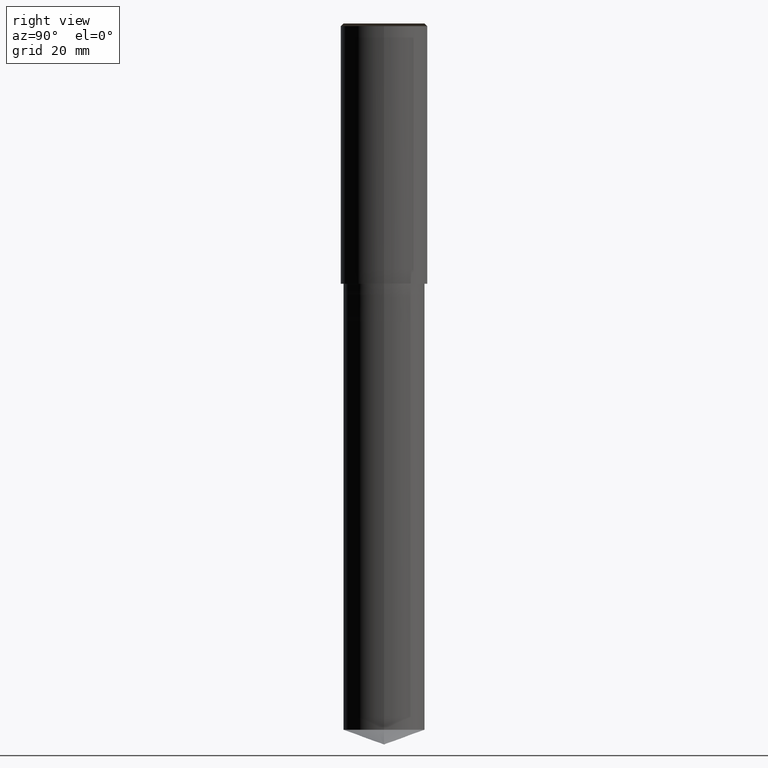
[diagram: clean part render]
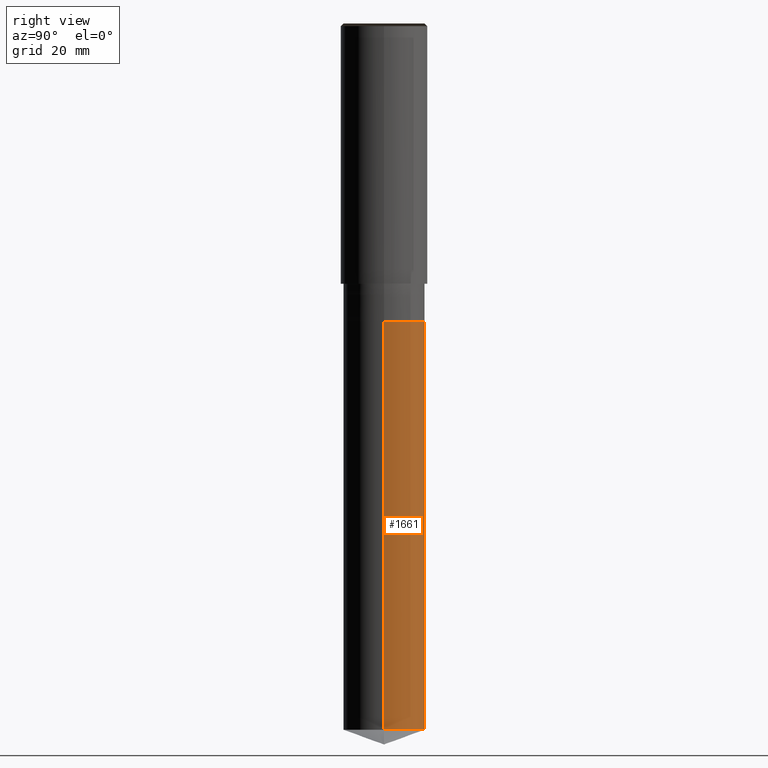
[diagram: same view with one face highlighted and labeled with its STEP entity id]
A machine part, right view. The second image highlights one B-rep face of the part: STEP entity #1661.
In plain terms, the highlighted face is a freeform B-spline surface patch.
Its self-contained STEP definition (entity closure, byte-faithful):
#1563=CARTESIAN_POINT('',(7.5,0.0,-82.270223243003));
#1564=CARTESIAN_POINT('',(7.5,7.5,-82.270223243003));
#1565=CARTESIAN_POINT('',(0.0,7.5,-82.270223243003));
#1566=CARTESIAN_POINT('',(-7.5,7.5,-82.270223243003));
#1567=CARTESIAN_POINT('',(-7.5,0.0,-82.270223243003));
#1568=CARTESIAN_POINT('',(7.5,0.0,-7.0));
#1569=CARTESIAN_POINT('',(7.5,7.5,-7.0));
#1570=CARTESIAN_POINT('',(0.0,7.5,-7.0));
#1571=CARTESIAN_POINT('',(-7.5,7.5,-7.0));
#1572=CARTESIAN_POINT('',(-7.5,0.0,-7.0));
#1642=(
BOUNDED_SURFACE()
B_SPLINE_SURFACE(1,2,(
(#1563,#1564,#1565,#1566,#1567),
(#1568,#1569,#1570,#1571,#1572)
), .UNSPECIFIED.,.F.,.F.,.F.)
B_SPLINE_SURFACE_WITH_KNOTS((2,2),(3,2,3),(
0.0,1.0),(
0.0,0.5,1.0), .UNSPECIFIED.)
GEOMETRIC_REPRESENTATION_ITEM()
RATIONAL_B_SPLINE_SURFACE(((1.0,0.707106781187,1.0,0.707106781187,1.0),
(1.0,0.707106781187,1.0,0.707106781187,1.0)
))
REPRESENTATION_ITEM('')
SURFACE()
);
#1643=(
BOUNDED_CURVE()
B_SPLINE_CURVE(2,(#1567,#1566,#1565,#1564,#1563),.UNSPECIFIED.,.F.,.F.)
B_SPLINE_CURVE_WITH_KNOTS((3,2,3),
(0.0,0.5,1.0),.UNSPECIFIED.)
CURVE()
GEOMETRIC_REPRESENTATION_ITEM()
RATIONAL_B_SPLINE_CURVE((1.0,0.707106781187,1.0,0.707106781187,1.0))
REPRESENTATION_ITEM('')
);
#1644=(
BOUNDED_CURVE()
B_SPLINE_CURVE(1,(#1563,#1568),.UNSPECIFIED.,.F.,.F.)
B_SPLINE_CURVE_WITH_KNOTS((2,2),
(0.0,1.0),.UNSPECIFIED.)
CURVE()
GEOMETRIC_REPRESENTATION_ITEM()
RATIONAL_B_SPLINE_CURVE((1.0,1.0))
REPRESENTATION_ITEM('')
);
#1645=(
BOUNDED_CURVE()
B_SPLINE_CURVE(2,(#1568,#1569,#1570,#1571,#1572),.UNSPECIFIED.,.F.,.F.)
B_SPLINE_CURVE_WITH_KNOTS((3,2,3),
(0.0,0.5,1.0),.UNSPECIFIED.)
CURVE()
GEOMETRIC_REPRESENTATION_ITEM()
RATIONAL_B_SPLINE_CURVE((1.0,0.707106781187,1.0,0.707106781187,1.0))
REPRESENTATION_ITEM('')
);
#1646=(
BOUNDED_CURVE()
B_SPLINE_CURVE(1,(#1572,#1567),.UNSPECIFIED.,.F.,.F.)
B_SPLINE_CURVE_WITH_KNOTS((2,2),
(0.0,1.0),.UNSPECIFIED.)
CURVE()
GEOMETRIC_REPRESENTATION_ITEM()
RATIONAL_B_SPLINE_CURVE((1.0,1.0))
REPRESENTATION_ITEM('')
);
#1647=VERTEX_POINT('',#1563);
#1648=VERTEX_POINT('',#1567);
#1649=VERTEX_POINT('',#1568);
#1650=VERTEX_POINT('',#1572);
#1651=EDGE_CURVE('',#1648,#1647,#1643,.T.);
#1652=EDGE_CURVE('',#1647,#1649,#1644,.T.);
#1653=EDGE_CURVE('',#1649,#1650,#1645,.T.);
#1654=EDGE_CURVE('',#1650,#1648,#1646,.T.);
#1655=ORIENTED_EDGE('',*,*,#1651,.T.);
#1656=ORIENTED_EDGE('',*,*,#1652,.T.);
#1657=ORIENTED_EDGE('',*,*,#1653,.T.);
#1658=ORIENTED_EDGE('',*,*,#1654,.T.);
#1659=EDGE_LOOP('',(#1655,#1656,#1657,#1658));
#1660=FACE_OUTER_BOUND('',#1659,.T.);
#1661=ADVANCED_FACE('',(#1660),#1642,.T.);